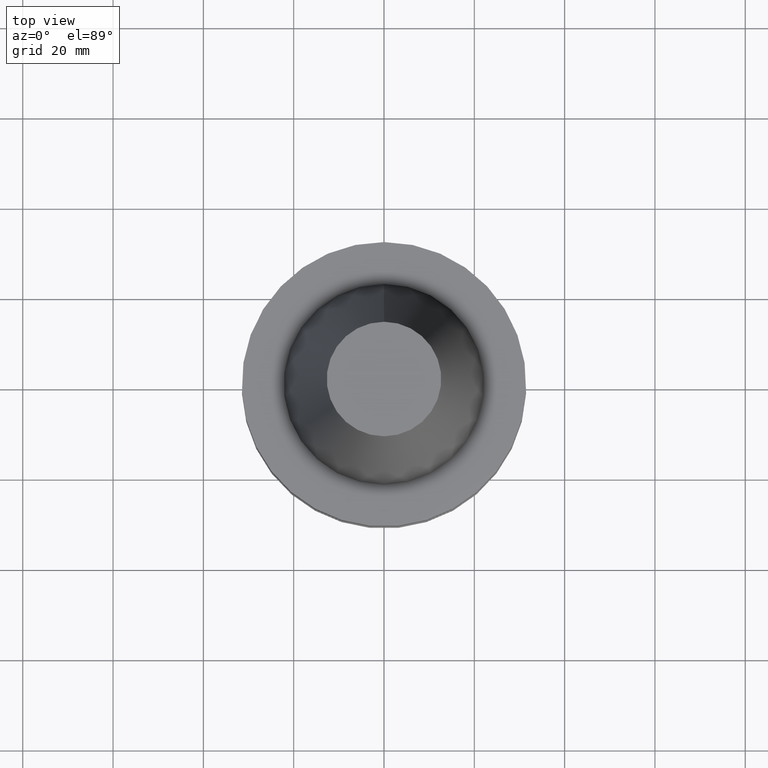
[diagram: clean part render]
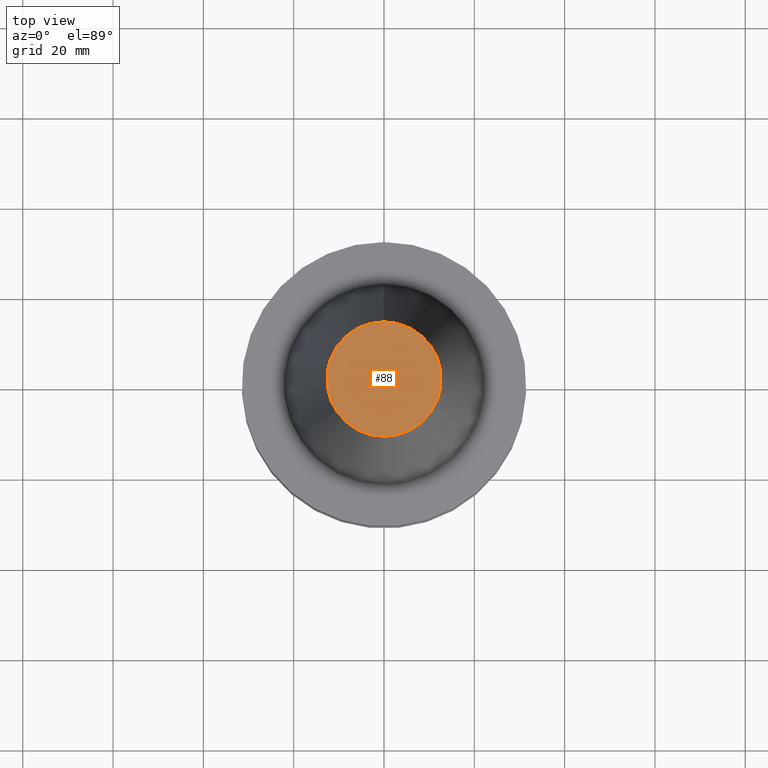
[diagram: same view with one face highlighted and labeled with its STEP entity id]
A machine part, top view. The second image highlights one B-rep face of the part: STEP entity #88.
In plain terms, the highlighted planar face has unit normal (-0, -0, 1).
Its self-contained STEP definition (entity closure, byte-faithful):
#88=ADVANCED_FACE('',(#129),#130,.T.);
#129=FACE_OUTER_BOUND('',#172,.T.);
#130=PLANE('',#173);
#172=EDGE_LOOP('',(#241));
#173=AXIS2_PLACEMENT_3D('',#242,#243,#244);
#241=ORIENTED_EDGE('',*,*,#263,.F.);
#242=CARTESIAN_POINT('',(-4.00459503321185E-015,6.34375000265984,65.4));
#243=DIRECTION('',(-6.12323399573677E-017,-1.22464679914735E-016,1.0));
#244=DIRECTION('',(1.23259516440783E-032,-1.0,-1.22464679914735E-016));
#263=EDGE_CURVE('',#290,#290,#291,.T.);
#290=VERTEX_POINT('',#318);
#291=CIRCLE('',#319,12.6875000053197);
#318=CARTESIAN_POINT('',(-4.00459503321185E-015,12.6875000053197,65.4));
#319=AXIS2_PLACEMENT_3D('',#359,#360,#361);
#359=CARTESIAN_POINT('',(-4.00459503321185E-015,-8.00919006642369E-015,65.4));
#360=DIRECTION('',(6.12323399573677E-017,1.22464679914735E-016,-1.0));
#361=DIRECTION('',(-1.23259516440783E-032,1.0,1.22464679914735E-016));